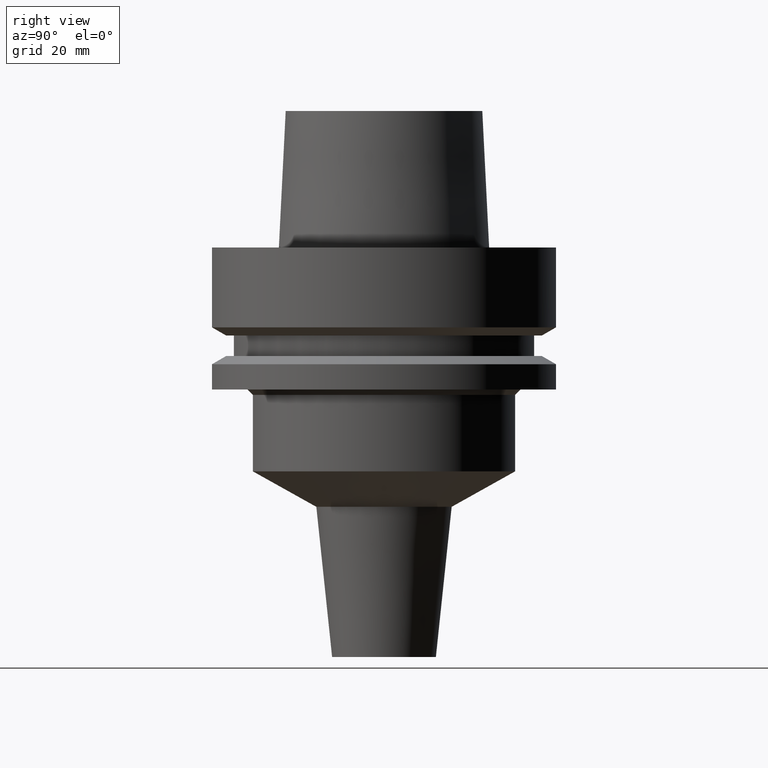
[diagram: clean part render]
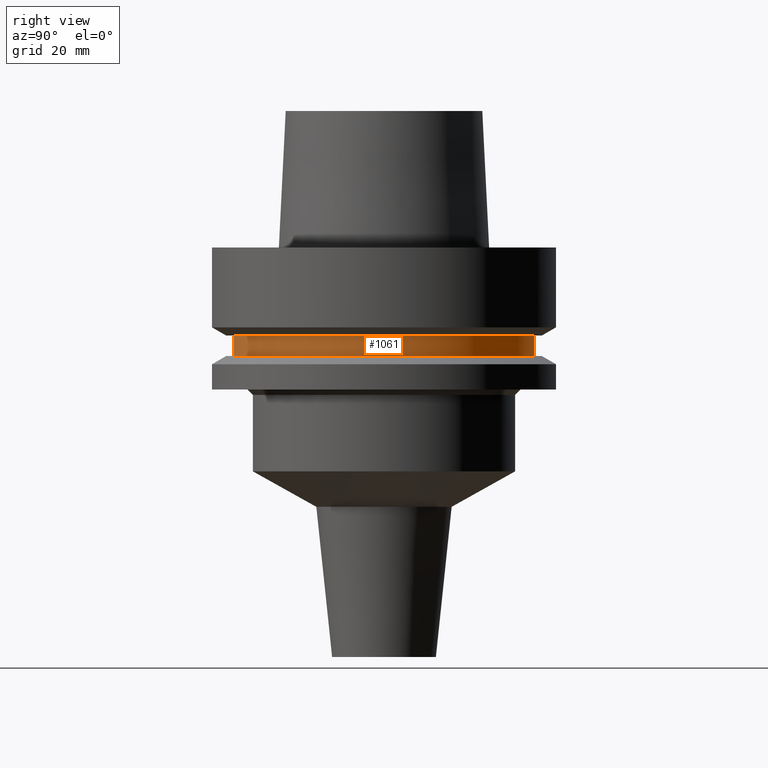
[diagram: same view with one face highlighted and labeled with its STEP entity id]
A machine part, right view. The second image highlights one B-rep face of the part: STEP entity #1061.
In plain terms, the highlighted cylindrical surface (partial cylindrical patch) has radius 27.5 mm, axis along (0, 0, -1).
Its self-contained STEP definition (entity closure, byte-faithful):
#164=CARTESIAN_POINT('',(0.E0,0.E0,-1.6125E1));
#165=DIRECTION('',(0.E0,0.E0,-1.E0));
#166=DIRECTION('',(0.E0,1.E0,0.E0));
#167=AXIS2_PLACEMENT_3D('',#164,#165,#166);
#172=DIRECTION('',(0.E0,0.E0,-1.E0));
#173=VECTOR('',#172,3.75E0);
#174=CARTESIAN_POINT('',(0.E0,-2.75E1,-1.6125E1));
#175=LINE('',#174,#173);
#179=DIRECTION('',(0.E0,0.E0,-1.E0));
#180=VECTOR('',#179,3.75E0);
#181=CARTESIAN_POINT('',(0.E0,2.75E1,-1.6125E1));
#182=LINE('',#181,#180);
#202=CARTESIAN_POINT('',(0.E0,0.E0,-1.9875E1));
#203=DIRECTION('',(0.E0,0.E0,1.E0));
#204=DIRECTION('',(0.E0,-1.E0,0.E0));
#205=AXIS2_PLACEMENT_3D('',#202,#203,#204);
#876=CARTESIAN_POINT('',(0.E0,-2.75E1,-1.9875E1));
#877=CARTESIAN_POINT('',(0.E0,2.75E1,-1.9875E1));
#878=VERTEX_POINT('',#876);
#879=VERTEX_POINT('',#877);
#880=CARTESIAN_POINT('',(0.E0,2.75E1,-1.6125E1));
#881=VERTEX_POINT('',#880);
#882=CARTESIAN_POINT('',(0.E0,-2.75E1,-1.6125E1));
#883=VERTEX_POINT('',#882);
#1049=CARTESIAN_POINT('',(0.E0,0.E0,3.E1));
#1050=DIRECTION('',(0.E0,0.E0,-1.E0));
#1051=DIRECTION('',(0.E0,-1.E0,0.E0));
#1052=AXIS2_PLACEMENT_3D('',#1049,#1050,#1051);
#1053=CYLINDRICAL_SURFACE('',#1052,2.75E1);
#1054=ORIENTED_EDGE('',*,*,#1039,.T.);
#1056=ORIENTED_EDGE('',*,*,#1055,.F.);
#1057=ORIENTED_EDGE('',*,*,#1042,.F.);
#1058=ORIENTED_EDGE('',*,*,#1029,.F.);
#1059=EDGE_LOOP('',(#1054,#1056,#1057,#1058));
#1060=FACE_OUTER_BOUND('',#1059,.F.);
#168=CIRCLE('',#167,2.75E1);
#206=CIRCLE('',#205,2.75E1);
#1029=EDGE_CURVE('',#881,#883,#168,.T.);
#1039=EDGE_CURVE('',#881,#879,#182,.T.);
#1042=EDGE_CURVE('',#883,#878,#175,.T.);
#1055=EDGE_CURVE('',#878,#879,#206,.T.);
#1061=ADVANCED_FACE('',(#1060),#1053,.T.);